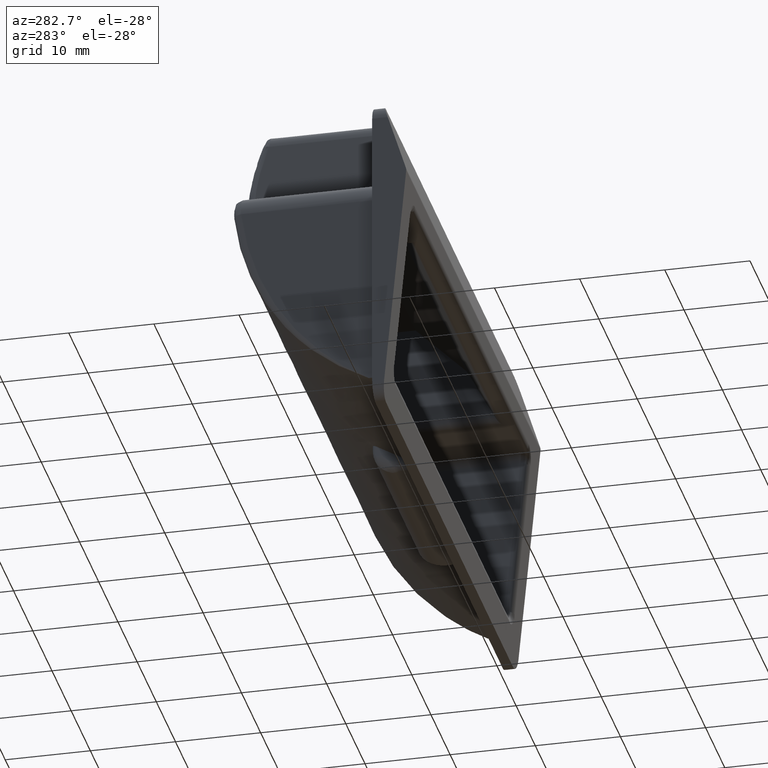
[diagram: clean part render]
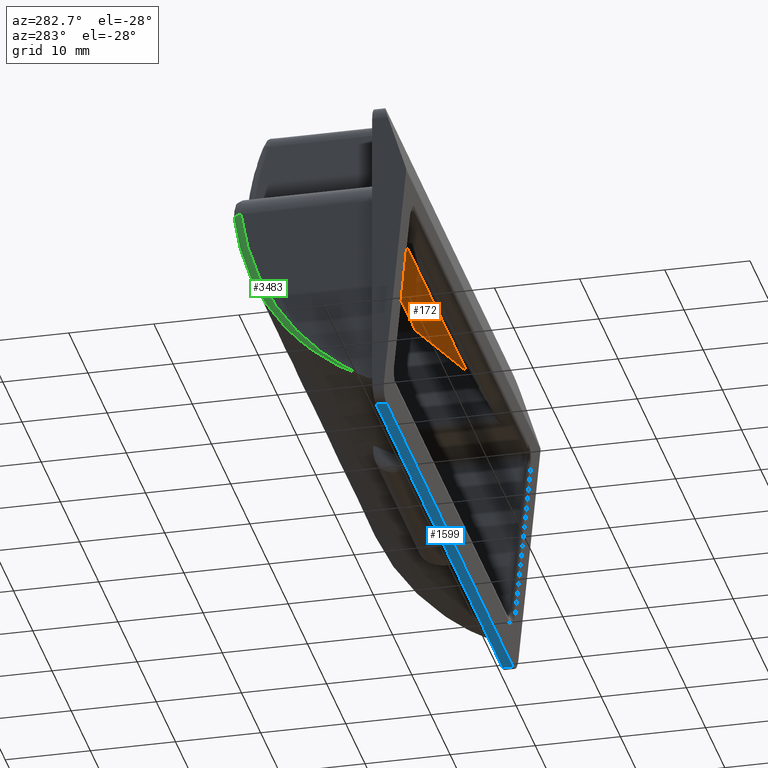
[diagram: same view with three faces highlighted in distinct colors, each labeled with its STEP entity id]
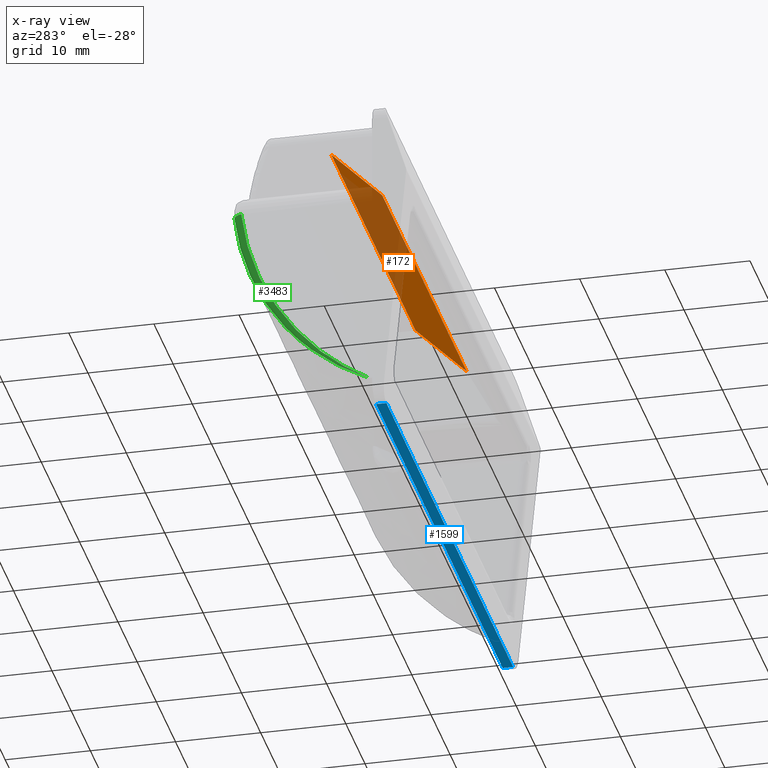
[diagram: x-ray of the same camera — body ghosted, the three highlighted faces saturated]
A machine part, auxiliary view with three faces highlighted in distinct colors.
The next image is the same camera in x-ray (body ghosted, the three faces saturated) — at least one of them is partly hidden behind the body in this view.
Their STEP definitions:

[orange] entity #172 — the highlighted face is a freeform B-spline surface patch.
#10=CARTESIAN_POINT('',(-22.0,1.749999999999800,13.250000000000000));
#11=VERTEX_POINT('',#10);
#41=CARTESIAN_POINT('',(-22.0,7.749999999999799,19.250000000000000));
#42=VERTEX_POINT('',#41);
#48=CARTESIAN_POINT('',(-22.0,7.749999999999799,19.250000000000000));
#49=CARTESIAN_POINT('',(-22.0,1.749999999999800,13.250000000000000));
#50=QUASI_UNIFORM_CURVE('',1,(#48,#49),.UNSPECIFIED.,.F.,.U.);
#51=EDGE_CURVE('',#42,#11,#50,.T.);
#85=CARTESIAN_POINT('',(22.0,1.749999999999800,13.250000000000000));
#86=VERTEX_POINT('',#85);
#92=CARTESIAN_POINT('',(22.0,7.749999999999799,19.250000000000000));
#93=VERTEX_POINT('',#92);
#94=CARTESIAN_POINT('',(22.0,7.749999999999799,19.250000000000000));
#95=CARTESIAN_POINT('',(22.0,1.749999999999800,13.250000000000000));
#96=QUASI_UNIFORM_CURVE('',1,(#94,#95),.UNSPECIFIED.,.F.,.U.);
#97=EDGE_CURVE('',#93,#86,#96,.T.);
#113=CARTESIAN_POINT('',(22.0,1.749999999999800,13.250000000000000));
#114=CARTESIAN_POINT('',(-22.0,1.749999999999800,13.250000000000000));
#115=QUASI_UNIFORM_CURVE('',1,(#113,#114),.UNSPECIFIED.,.F.,.U.);
#116=EDGE_CURVE('',#86,#11,#115,.T.);
#157=CARTESIAN_POINT('',(-24.197799914719461,1.450300011628964,12.950300011629160));
#158=CARTESIAN_POINT('',(-24.197799914719461,8.049700149303176,19.549700149303380));
#159=CARTESIAN_POINT('',(24.197801094891432,1.450300011628964,12.950300011629160));
#160=CARTESIAN_POINT('',(24.197801094891432,8.049700149303176,19.549700149303380));
#161=B_SPLINE_SURFACE_WITH_KNOTS('',1,1,((#157,#159),(#158,#160)),.UNSPECIFIED.,.F.,.F.,.U.,(2,2),(2,2),(0.0,9.332961178225743),(0.0,48.395601009610893),.UNSPECIFIED.);
#162=ORIENTED_EDGE('',*,*,#51,.F.);
#163=CARTESIAN_POINT('',(22.0,7.749999999999799,19.250000000000000));
#164=CARTESIAN_POINT('',(-22.0,7.749999999999799,19.250000000000000));
#165=QUASI_UNIFORM_CURVE('',1,(#163,#164),.UNSPECIFIED.,.F.,.U.);
#166=EDGE_CURVE('',#93,#42,#165,.T.);
#167=ORIENTED_EDGE('',*,*,#166,.F.);
#168=ORIENTED_EDGE('',*,*,#97,.T.);
#169=ORIENTED_EDGE('',*,*,#116,.T.);
#170=EDGE_LOOP('',(#162,#167,#168,#169));
#171=FACE_OUTER_BOUND('',#170,.T.);
#172=ADVANCED_FACE('',(#171),#161,.T.);

[blue] entity #1599 — the highlighted face is a freeform B-spline surface patch.
#1564=CARTESIAN_POINT('',(-36.296699872079202,-1.275422786382161,-19.750000000000000));
#1565=CARTESIAN_POINT('',(36.296701642337140,-1.275422786382161,-19.750000000000000));
#1566=CARTESIAN_POINT('',(-36.296699872079202,0.060676603681013,-19.750000000000000));
#1567=CARTESIAN_POINT('',(36.296701642337140,0.060676603681013,-19.750000000000000));
#1568=B_SPLINE_SURFACE_WITH_KNOTS('',1,1,((#1564,#1566),(#1565,#1567)),.UNSPECIFIED.,.F.,.F.,.U.,(2,2),(2,2),(0.0,72.593401514416342),(0.041708334948495,0.958291687403247),.UNSPECIFIED.);
#1569=CARTESIAN_POINT('',(33.0,0.0,-19.750000000000000));
#1570=VERTEX_POINT('',#1569);
#1571=CARTESIAN_POINT('',(-33.0,0.0,-19.750000000000000));
#1572=VERTEX_POINT('',#1571);
#1573=CARTESIAN_POINT('',(33.0,0.0,-19.750000000000000));
#1574=CARTESIAN_POINT('',(-33.0,0.0,-19.750000000000000));
#1575=QUASI_UNIFORM_CURVE('',1,(#1573,#1574),.UNSPECIFIED.,.F.,.U.);
#1576=EDGE_CURVE('',#1570,#1572,#1575,.T.);
#1577=ORIENTED_EDGE('',*,*,#1576,.F.);
#1578=CARTESIAN_POINT('',(33.0,-1.214746215283180,-19.750000000000000));
#1579=VERTEX_POINT('',#1578);
#1580=CARTESIAN_POINT('',(33.0,0.0,-19.750000000000000));
#1581=CARTESIAN_POINT('',(33.0,-1.214746215283180,-19.750000000000000));
#1582=QUASI_UNIFORM_CURVE('',1,(#1580,#1581),.UNSPECIFIED.,.F.,.U.);
#1583=EDGE_CURVE('',#1570,#1579,#1582,.T.);
#1584=ORIENTED_EDGE('',*,*,#1583,.T.);
#1585=CARTESIAN_POINT('',(-33.0,-1.214746215283180,-19.750000000000000));
#1586=VERTEX_POINT('',#1585);
#1587=CARTESIAN_POINT('',(33.0,-1.214746215283180,-19.750000000000000));
#1588=CARTESIAN_POINT('',(-33.0,-1.214746215283180,-19.750000000000000));
#1589=QUASI_UNIFORM_CURVE('',1,(#1587,#1588),.UNSPECIFIED.,.F.,.U.);
#1590=EDGE_CURVE('',#1579,#1586,#1589,.T.);
#1591=ORIENTED_EDGE('',*,*,#1590,.T.);
#1592=CARTESIAN_POINT('',(-33.0,-1.214746215283180,-19.750000000000000));
#1593=CARTESIAN_POINT('',(-33.0,0.0,-19.750000000000000));
#1594=QUASI_UNIFORM_CURVE('',1,(#1592,#1593),.UNSPECIFIED.,.F.,.U.);
#1595=EDGE_CURVE('',#1586,#1572,#1594,.T.);
#1596=ORIENTED_EDGE('',*,*,#1595,.T.);
#1597=EDGE_LOOP('',(#1577,#1584,#1591,#1596));
#1598=FACE_OUTER_BOUND('',#1597,.T.);
#1599=ADVANCED_FACE('',(#1598),#1568,.F.);

[green] entity #3483 — the highlighted face is a freeform B-spline surface patch.
#3248=CARTESIAN_POINT('',(-33.0,0.845232578665328,-16.250000000000000));
#3249=CARTESIAN_POINT('',(-32.999999999999936,0.845232578665327,-16.249999999999879));
#3250=CARTESIAN_POINT('',(-33.0,0.845232578665328,-16.250000000000000));
#3251=CARTESIAN_POINT('',(-32.937499881618351,1.933522280366724,-15.712333294949101));
#3252=CARTESIAN_POINT('',(-33.000000000029495,1.933522285790686,-15.712333292196409));
#3253=CARTESIAN_POINT('',(-33.0,1.905856945239279,-15.656288401383950));
#3254=CARTESIAN_POINT('',(-32.874999999946802,2.988001279042979,-15.106252171942851));
#3255=CARTESIAN_POINT('',(-32.999999999991552,2.988001279074649,-15.106252171961986));
#3256=CARTESIAN_POINT('',(-33.0,2.925545588159634,-14.997692320091961));
#3257=CARTESIAN_POINT('',(-32.751953125053213,5.012762166781489,-13.766789275586421));
#3258=CARTESIAN_POINT('',(-33.000000000008392,5.012762166749725,-13.766789275567259));
#3259=CARTESIAN_POINT('',(-33.0,4.869393981784070,-13.564221335260640));
#3260=CARTESIAN_POINT('',(-32.691406250032699,5.983033610392418,-13.033414066888801));
#3261=CARTESIAN_POINT('',(-33.000000000021039,5.983033610333686,-13.033414066859452));
#3262=CARTESIAN_POINT('',(-33.0,5.793533112746739,-12.789373324641360));
#3263=CARTESIAN_POINT('',(-32.574218749967187,7.824095123360008,-11.450912879302740));
#3264=CARTESIAN_POINT('',(-32.999999999978968,7.824095123418732,-11.450912879332170));
#3265=CARTESIAN_POINT('',(-33.0,7.534895445766829,-11.138039999117240));
#3266=CARTESIAN_POINT('',(-32.517578124928903,8.694877570254100,-10.601793452371981));
#3267=CARTESIAN_POINT('',(-33.000000000021068,8.694877570280587,-10.601793452420495));
#3268=CARTESIAN_POINT('',(-33.0,8.352121328734278,-10.261569079112800));
#3269=CARTESIAN_POINT('',(-32.410156250071012,10.323247535999240,-8.801174459379128));
#3270=CARTESIAN_POINT('',(-32.999999999978918,10.323247535972749,-8.801174459330683));
#3271=CARTESIAN_POINT('',(-33.0,9.870713142977849,-8.422186501565060));
#3272=CARTESIAN_POINT('',(-32.359374999972253,11.080828312979101,-7.849682348343431));
#3273=CARTESIAN_POINT('',(-33.000000000016769,11.080828312972379,-7.849682348351545));
#3274=CARTESIAN_POINT('',(-33.0,10.572084289503540,-7.459287656249400));
#3275=CARTESIAN_POINT('',(-32.265625000027647,12.470863925681840,-5.859300852586920));
#3276=CARTESIAN_POINT('',(-32.999999999983096,12.470863925688569,-5.859300852578762));
#3277=CARTESIAN_POINT('',(-33.0,11.852304900396099,-5.462413615348560));
#3278=CARTESIAN_POINT('',(-32.222656249960643,13.103313006305861,-4.820419708547941));
#3279=CARTESIAN_POINT('',(-33.000000000004121,13.103313006313961,-4.820419708554116));
#3280=CARTESIAN_POINT('',(-33.0,12.431161678580599,-4.428449217731620));
#3281=CARTESIAN_POINT('',(-32.146484375039350,14.233124637669199,-2.671619303469285));
#3282=CARTESIAN_POINT('',(-32.999999999995723,14.233124637661081,-2.671619303463059));
#3283=CARTESIAN_POINT('',(-33.0,13.461784403139720,-2.304620486128470));
#3284=CARTESIAN_POINT('',(-32.113281249961403,14.730482510704739,-1.561708939002835));
#3285=CARTESIAN_POINT('',(-32.999999999962078,14.730482510721357,-1.561708938994409));
#3286=CARTESIAN_POINT('',(-33.0,13.913559255802319,-1.214764601391720));
#3287=CARTESIAN_POINT('',(-32.058593750038597,15.582278417528300,0.711672075335969));
#3288=CARTESIAN_POINT('',(-33.000000000037879,15.582278417511679,0.711672075327583));
#3289=CARTESIAN_POINT('',(-33.0,14.687296222914821,1.006148619472976));
#3290=CARTESIAN_POINT('',(-32.037109374974449,15.936712924666400,1.875133312837100));
#3291=CARTESIAN_POINT('',(-32.999999999983068,15.936712924665374,1.875133312841297));
#3292=CARTESIAN_POINT('',(-33.0,15.009268279061200,2.137200081528370));
#3293=CARTESIAN_POINT('',(-32.007812500025452,16.497079424869099,4.237294799419046));
#3294=CARTESIAN_POINT('',(-33.000000000016790,16.497079424870194,4.237294799414842));
#3295=CARTESIAN_POINT('',(-33.0,15.522240054381751,4.426499564255235));
#3296=CARTESIAN_POINT('',(-32.000000000269452,16.703008850749299,5.435982975327950));
#3297=CARTESIAN_POINT('',(-32.999999999987374,16.703008850547306,5.435982975352800));
#3298=CARTESIAN_POINT('',(-33.0,15.713251804900249,5.584759628465320));
#3299=CARTESIAN_POINT('',(-32.0,16.833065450369752,6.642857142857049));
#3300=CARTESIAN_POINT('',(-32.999999999999950,16.833065450369801,6.642857142857043));
#3301=CARTESIAN_POINT('',(-33.0,15.838821814150100,6.749999999999909));
#3309=(BOUNDED_SURFACE()B_SPLINE_SURFACE(2,3,((#3248,#3251,#3254,#3257,#3260,#3263,#3266,#3269,#3272,#3275,#3278,#3281,#3284,#3287,#3290,#3293,#3296,#3299),(#3249,#3252,#3255,#3258,#3261,#3264,#3267,#3270,#3273,#3276,#3279,#3282,#3285,#3288,#3291,#3294,#3297,#3300),(#3250,#3253,#3256,#3259,#3262,#3265,#3268,#3271,#3274,#3277,#3280,#3283,#3286,#3289,#3292,#3295,#3298,#3301)),.UNSPECIFIED.,.F.,.F.,.U.)B_SPLINE_SURFACE_WITH_KNOTS((3,3),(4,2,2,2,2,2,2,2,4),(0.0,1.0),(0.458874205014118,0.584445855723981,0.710017506433844,0.835589157143708,0.961160807853571,1.086732458563434,1.212304109273298,1.337875759983162,1.463447410693024),.UNSPECIFIED.)GEOMETRIC_REPRESENTATION_ITEM()RATIONAL_B_SPLINE_SURFACE(((1.0,1.0,1.0,1.0,1.0,1.0,1.0,1.0,1.0,1.0,1.0,1.0,1.0,1.0,1.0,1.0,1.0,1.0),(0.707106781186548,0.707106781186548,0.707106781186548,0.707106781186548,0.707106781186548,0.707106781186548,0.707106781186548,0.707106781186548,0.707106781186548,0.707106781186548,0.707106781186548,0.707106781186548,0.707106781186548,0.707106781186548,0.707106781186548,0.707106781186548,0.707106781186548,0.707106781186548),(1.0,1.0,1.0,1.0,1.0,1.0,1.0,1.0,1.0,1.0,1.0,1.0,1.0,1.0,1.0,1.0,1.0,1.0)))REPRESENTATION_ITEM('')SURFACE());
#3310=CARTESIAN_POINT('',(-33.0,0.845232578665328,-16.250000000000000));
#3311=VERTEX_POINT('',#3310);
#3312=CARTESIAN_POINT('',(-32.0,16.833065450369752,6.642857142857049));
#3313=VERTEX_POINT('',#3312);
#3314=CARTESIAN_POINT('',(-33.0,0.845232578665328,-16.250000000000000));
#3315=CARTESIAN_POINT('',(-32.998742217443883,0.867126701445313,-16.239163399060271));
#3316=CARTESIAN_POINT('',(-32.996236217188702,0.910748452288344,-16.217572604538660));
#3317=CARTESIAN_POINT('',(-32.992492130969140,0.975828030332117,-16.185101901732999));
#3318=CARTESIAN_POINT('',(-32.988777156025158,1.040334033114973,-16.152730447242661));
#3319=CARTESIAN_POINT('',(-32.985091332134203,1.104260576042300,-16.120447275748159));
#3320=CARTESIAN_POINT('',(-32.981434648760931,1.167611077516724,-16.088260212005100));
#3321=CARTESIAN_POINT('',(-32.977807108693192,1.230386497123503,-16.056172057377530));
#3322=CARTESIAN_POINT('',(-32.974208711192723,1.292588450320877,-16.024186897092211));
#3323=CARTESIAN_POINT('',(-32.970639456454300,1.354218383088242,-15.992308430013139));
#3324=CARTESIAN_POINT('',(-32.967099344425201,1.415277790005642,-15.960540411063210));
#3325=CARTESIAN_POINT('',(-32.963588375118057,1.475768156035690,-15.928886534214900));
#3326=CARTESIAN_POINT('',(-32.960106548529247,1.535690971467403,-15.897350463606600));
#3327=CARTESIAN_POINT('',(-32.956653864658058,1.595047727494916,-15.865935825443991));
#3328=CARTESIAN_POINT('',(-32.953230323504123,1.653839916927627,-15.834646210283751));
#3329=CARTESIAN_POINT('',(-32.949835925065763,1.712069033546507,-15.803485172570580));
#3330=CARTESIAN_POINT('',(-32.946470669342972,1.769736571823689,-15.772456230902030));
#3331=CARTESIAN_POINT('',(-32.943134556334570,1.826844026550382,-15.741562868102161));
#3332=CARTESIAN_POINT('',(-32.939827586039229,1.883392892493840,-15.710808531346659));
#3333=CARTESIAN_POINT('',(-32.936549758456252,1.939384664051346,-15.680196632275420));
#3334=CARTESIAN_POINT('',(-32.933301073584531,1.994820834909504,-15.649730547109270));
#3335=CARTESIAN_POINT('',(-32.930081531422850,2.049702897706848,-15.619413616766639));
#3336=CARTESIAN_POINT('',(-32.926891131970883,2.104032343700220,-15.589249146980890));
#3337=CARTESIAN_POINT('',(-32.923729875226513,2.157810662434579,-15.559240408418351));
#3338=CARTESIAN_POINT('',(-32.920597761188979,2.211039341416758,-15.529390636796810));
#3339=CARTESIAN_POINT('',(-32.917494789856953,2.263719865792496,-15.499703033004490));
#3340=CARTESIAN_POINT('',(-32.914420961229190,2.315853718027307,-15.470180763219560));
#3341=CARTESIAN_POINT('',(-32.911376275304278,2.367442377590815,-15.440826959030041));
#3342=CARTESIAN_POINT('',(-32.908360732081228,2.418487320644718,-15.411644717553870));
#3343=CARTESIAN_POINT('',(-32.905374331558278,2.468990019734245,-15.382637101559689));
#3344=CARTESIAN_POINT('',(-32.902417073733773,2.518951943483265,-15.353807139587531));
#3345=CARTESIAN_POINT('',(-32.899488958606383,2.568374556292814,-15.325157826069850));
#3346=CARTESIAN_POINT('',(-32.896589986174511,2.617259318043239,-15.296692121452940));
#3347=CARTESIAN_POINT('',(-32.893720156436338,2.665607683799767,-15.268412952318210));
#3348=CARTESIAN_POINT('',(-32.890879469390647,2.713421103521637,-15.240323211503730));
#3349=CARTESIAN_POINT('',(-32.888067925035003,2.760701021774630,-15.212425758225891));
#3350=CARTESIAN_POINT('',(-32.885285523367628,2.807448877447151,-15.184723418200971));
#3351=CARTESIAN_POINT('',(-32.882532264387372,2.853666103469753,-15.157218983766731));
#3352=CARTESIAN_POINT('',(-32.879808148090760,2.899354126537910,-15.129915214004070));
#3353=CARTESIAN_POINT('',(-32.877113174476747,2.944514366838583,-15.102814834858430));
#3354=CARTESIAN_POINT('',(-32.874447343542890,2.989148237779813,-15.075920539261160));
#3355=CARTESIAN_POINT('',(-32.871810655286552,3.033257145723917,-15.049234987250751));
#3356=CARTESIAN_POINT('',(-32.869203109705502,3.076842489724051,-15.022760806093860));
#3357=CARTESIAN_POINT('',(-32.866624706797573,3.119905661264088,-14.996500590405960));
#3358=CARTESIAN_POINT('',(-32.864075446559703,3.162448044001811,-14.970456902271980));
#3359=CARTESIAN_POINT('',(-32.861555328989212,3.204471013515576,-14.944632271366370));
#3360=CARTESIAN_POINT('',(-32.859064354083237,3.245975937054162,-14.919029195073060));
#3361=CARTESIAN_POINT('',(-32.856602521838653,3.286964173289997,-14.893650138604841));
#3362=CARTESIAN_POINT('',(-32.854169832252651,3.327437072075680,-14.868497535122479));
#3363=CARTESIAN_POINT('',(-32.851766285321283,3.367395974203687,-14.843573785853360));
#3364=CARTESIAN_POINT('',(-32.849391881041939,3.406842211169558,-14.818881260209540));
#3365=CARTESIAN_POINT('',(-32.847046619410207,3.445777104938024,-14.794422295905470));
#3366=CARTESIAN_POINT('',(-32.844730500422358,3.484201967712664,-14.770199199075099));
#3367=CARTESIAN_POINT('',(-32.842443524074937,3.522118101708621,-14.746214244388289));
#3368=CARTESIAN_POINT('',(-32.840185690363263,3.559526798928524,-14.722469675166881));
#3369=CARTESIAN_POINT('',(-32.837956999282937,3.596429340941656,-14.698967703499850));
#3370=CARTESIAN_POINT('',(-32.835757450829590,3.632826998666376,-14.675710510357970));
#3371=CARTESIAN_POINT('',(-32.833587044997849,3.668721032155265,-14.652700245707861));
#3372=CARTESIAN_POINT('',(-32.831445781782662,3.704112690384787,-14.629939028624610));
#3373=CARTESIAN_POINT('',(-32.829333661180627,3.739003211043793,-14.607428947406410));
#3374=CARTESIAN_POINT('',(-32.827250683175869,3.773393820339802,-14.585172059678090));
#3375=CARTESIAN_POINT('',(-32.825196847800058,3.807285732755831,-14.563170392531710));
#3376=CARTESIAN_POINT('',(-32.823172154910537,3.840680151001867,-14.541425942527860));
#3377=CARTESIAN_POINT('',(-32.821176604997447,3.873578265269375,-14.519940676202340));
#3378=CARTESIAN_POINT('',(-32.819210196236497,3.905981255046865,-14.498716528721490));
#3379=CARTESIAN_POINT('',(-32.817272935259822,3.937890281594637,-14.477755409297020));
#3380=CARTESIAN_POINT('',(-32.815364797814020,3.969306514544178,-14.457059181911390));
#3381=CARTESIAN_POINT('',(-32.797437928500742,4.264358042217940,-14.262141385491651));
#3382=CARTESIAN_POINT('',(-32.764494631294127,4.802854671180455,-13.892589334770040));
#3383=CARTESIAN_POINT('',(-32.717789127174669,5.556461266454789,-13.337811747496639));
#3384=CARTESIAN_POINT('',(-32.674132261556998,6.252518535651880,-12.790898561815920));
#3385=CARTESIAN_POINT('',(-32.630739264570757,6.937209945800698,-12.219289165528201));
#3386=CARTESIAN_POINT('',(-32.587431414997468,7.614048734590952,-11.617830111388381));
#3387=CARTESIAN_POINT('',(-32.544020643251841,8.285690721533403,-10.980824750912729));
#3388=CARTESIAN_POINT('',(-32.502927881247267,8.915658254645313,-10.344613000448650));
#3389=CARTESIAN_POINT('',(-32.462535113273049,9.529958456409544,-9.685365677293488));
#3390=CARTESIAN_POINT('',(-32.422859716178010,10.129144795713501,-9.000749147548904));
#3391=CARTESIAN_POINT('',(-32.383913228807970,10.713344261119580,-8.288301567928276));
#3392=CARTESIAN_POINT('',(-32.347145380028742,11.261686183404089,-7.575048038478923));
#3393=CARTESIAN_POINT('',(-32.311513644853349,11.790723801261510,-6.841433951194937));
#3394=CARTESIAN_POINT('',(-32.277100519654553,12.300170955340100,-6.086298259416755));
#3395=CARTESIAN_POINT('',(-32.243984246192483,12.789486622388550,-5.308475326040161));
#3396=CARTESIAN_POINT('',(-32.213104936771018,13.245626076183020,-4.530215542812610));
#3397=CARTESIAN_POINT('',(-32.183785736849622,13.679523662321211,-3.734696700692993));
#3398=CARTESIAN_POINT('',(-32.156138780508492,14.090613482823910,-2.921410582577508));
#3399=CARTESIAN_POINT('',(-32.130272548889252,14.478167695434159,-2.089888268086901));
#3400=CARTESIAN_POINT('',(-32.106791870240272,14.834000233904581,-1.259289787793875));
#3401=CARTESIAN_POINT('',(-32.091308246291007,15.072497887331140,-0.651309924245761));
#3402=CARTESIAN_POINT('',(-32.082231805245193,15.214185538847589,-0.269842291615069));
#3403=CARTESIAN_POINT('',(-32.078617207070472,15.270881327485149,-0.114488332092413));
#3404=CARTESIAN_POINT('',(-32.075083802688582,15.326580470754260,0.040877382302674));
#3405=CARTESIAN_POINT('',(-32.071631631558539,15.381286550202150,0.196248216479604));
#3406=CARTESIAN_POINT('',(-32.068260683137773,15.435003036412599,0.351617226933227));
#3407=CARTESIAN_POINT('',(-32.064970960239933,15.487733478884120,0.506977620365937));
#3408=CARTESIAN_POINT('',(-32.061762462112291,15.539481454528801,0.662322631242681));
#3409=CARTESIAN_POINT('',(-32.058635188952778,15.590250580658180,0.817645554569368));
#3410=CARTESIAN_POINT('',(-32.055589140707447,15.640044510745540,0.972939737197046));
#3411=CARTESIAN_POINT('',(-32.052624317388641,15.688866934792530,1.128198580198603));
#3412=CARTESIAN_POINT('',(-32.049740718990712,15.736721578469639,1.283415538280639));
#3413=CARTESIAN_POINT('',(-32.046938345512942,15.783612202587570,1.438584119980594));
#3414=CARTESIAN_POINT('',(-32.044217196954172,15.829542602484141,1.593697887647263));
#3415=CARTESIAN_POINT('',(-32.041577273312093,15.874516607437149,1.748750457472495));
#3416=CARTESIAN_POINT('',(-32.039018574585313,15.918538080074240,1.903735499502610));
#3417=CARTESIAN_POINT('',(-32.036541100772517,15.961610915787240,2.058646737648711));
#3418=CARTESIAN_POINT('',(-32.034144851871140,16.003739042149139,2.213477949690729));
#3419=CARTESIAN_POINT('',(-32.031829827880863,16.044926418334150,2.368222967276848));
#3420=CARTESIAN_POINT('',(-32.029596028798821,16.085177034540880,2.522875675917707));
#3421=CARTESIAN_POINT('',(-32.027443454623914,16.124494911418530,2.677430014975830));
#3422=CARTESIAN_POINT('',(-32.025372105353988,16.162884099496239,2.831879977650065));
#3423=CARTESIAN_POINT('',(-32.023381980987793,16.200348678615580,2.986219610955306));
#3424=CARTESIAN_POINT('',(-32.021473081523517,16.236892757366189,3.140443015697332));
#3425=CARTESIAN_POINT('',(-32.019645406959377,16.272520472524612,3.294544346443034));
#3426=CARTESIAN_POINT('',(-32.017898957293127,16.307235988496359,3.448517811485961));
#3427=CARTESIAN_POINT('',(-32.016233732523673,16.341043496761159,3.602357672807242));
#3428=CARTESIAN_POINT('',(-32.014649732649083,16.373947215321579,3.756058246031980));
#3429=CARTESIAN_POINT('',(-32.013146957667523,16.405951388154719,3.909613900381159));
#3430=CARTESIAN_POINT('',(-32.011725407576868,16.437060284667520,4.063019058619137));
#3431=CARTESIAN_POINT('',(-32.010385082375862,16.467278199154880,4.216268196996757));
#3432=CARTESIAN_POINT('',(-32.009125982062272,16.496609450262540,4.369355845189963));
#3433=CARTESIAN_POINT('',(-32.007948106634579,16.525058380447959,4.522276586234862));
#3434=CARTESIAN_POINT('',(-32.006851456090097,16.552629355465101,4.675025056456167));
#3435=CARTESIAN_POINT('',(-32.005836030430586,16.579326763775569,4.827595945399921));
#3436=CARTESIAN_POINT('',(-32.004901829639387,16.605155016250372,4.979983995731131));
#3437=CARTESIAN_POINT('',(-32.004048853769831,16.630118544805949,5.132184003242537));
#3438=CARTESIAN_POINT('',(-32.003277102616558,16.654221805021919,5.284190816430683));
#3439=CARTESIAN_POINT('',(-32.002586576932721,16.677469263961971,5.435999337662997));
#3440=CARTESIAN_POINT('',(-32.001977273907933,16.699865443057220,5.587604518407678));
#3441=CARTESIAN_POINT('',(-32.001449203987868,16.721414756168610,5.739001376532039));
#3442=CARTESIAN_POINT('',(-32.001002328304111,16.742122109614861,5.890184931486364));
#3443=CARTESIAN_POINT('',(-32.000636791440250,16.761990667665302,6.041150444940493));
#3444=CARTESIAN_POINT('',(-32.000352055535359,16.781030162600871,6.191892525109614));
#3445=CARTESIAN_POINT('',(-32.000150121414237,16.799225978952890,6.342408458143981));
#3446=CARTESIAN_POINT('',(-32.000023546072633,16.816654157029149,6.492685814908651));
#3447=CARTESIAN_POINT('',(-32.000007843014622,16.827598975501409,6.592836235111538));
#3448=CARTESIAN_POINT('',(-31.999999999999918,16.833065450369752,6.642857142857027));
#3449=B_SPLINE_CURVE_WITH_KNOTS('',3,(#3314,#3315,#3316,#3317,#3318,#3319,#3320,#3321,#3322,#3323,#3324,#3325,#3326,#3327,#3328,#3329,#3330,#3331,#3332,#3333,#3334,#3335,#3336,#3337,#3338,#3339,#3340,#3341,#3342,#3343,#3344,#3345,#3346,#3347,#3348,#3349,#3350,#3351,#3352,#3353,#3354,#3355,#3356,#3357,#3358,#3359,#3360,#3361,#3362,#3363,#3364,#3365,#3366,#3367,#3368,#3369,#3370,#3371,#3372,#3373,#3374,#3375,#3376,#3377,#3378,#3379,#3380,#3381,#3382,#3383,#3384,#3385,#3386,#3387,#3388,#3389,#3390,#3391,#3392,#3393,#3394,#3395,#3396,#3397,#3398,#3399,#3400,#3401,#3402,#3403,#3404,#3405,#3406,#3407,#3408,#3409,#3410,#3411,#3412,#3413,#3414,#3415,#3416,#3417,#3418,#3419,#3420,#3421,#3422,#3423,#3424,#3425,#3426,#3427,#3428,#3429,#3430,#3431,#3432,#3433,#3434,#3435,#3436,#3437,#3438,#3439,#3440,#3441,#3442,#3443,#3444,#3445,#3446,#3447,#3448),.UNSPECIFIED.,.F.,.U.,(4,1,1,1,1,1,1,1,1,1,1,1,1,1,1,1,1,1,1,1,1,1,1,1,1,1,1,1,1,1,1,1,1,1,1,1,1,1,1,1,1,1,1,1,1,1,1,1,1,1,1,1,1,1,1,1,1,1,1,1,1,1,1,1,1,1,1,1,1,1,1,1,1,1,1,1,1,1,1,1,1,1,1,1,1,1,1,1,1,1,1,1,1,1,1,1,1,1,1,1,1,1,1,1,1,1,1,1,1,1,1,1,1,1,1,1,1,1,1,1,1,1,1,1,1,1,1,1,1,1,1,1,4),(0.0,0.002517269317993,0.005015395962552,0.007494379933545,0.009954221230841,0.012394919854315,0.014816475803847,0.017218889079320,0.019602159680621,0.021966287607641,0.024311272860278,0.026637115438431,0.028943815342007,0.031231372570916,0.033499787125074,0.035749059004400,0.037979188208819,0.040190174738262,0.042382018592666,0.044554719771971,0.046708278276124,0.048842694105077,0.050957967258789,0.053054097737224,0.055131085540354,0.057188930668154,0.059227633120608,0.061247192897707,0.063247609999447,0.065228884425832,0.067191016176874,0.069134005252592,0.071057851653011,0.072962555378166,0.074848116428100,0.076714534802864,0.078561810502517,0.080389943527130,0.082198933876779,0.083988781551553,0.085759486551550,0.087511048876879,0.089243468527657,0.090956745504016,0.092650879806097,0.094325871434055,0.095981720388055,0.097618426668277,0.099235990274914,0.100834411208172,0.102413689468274,0.103973825055457,0.105514817969974,0.107036668212094,0.108539375782105,0.110022940680313,0.111487362907042,0.112932642462637,0.114358779347465,0.115765773561913,0.117153625106393,0.118522333981340,0.119871900187217,0.121202323724511,0.122513604593741,0.123805742795453,0.125078738330228,0.158950640776978,0.191085197432138,0.221482394148129,0.250142219949625,0.282967768818058,0.314750319709118,0.345489893679561,0.375186515201776,0.407559251113045,0.439186440244330,0.470068137546589,0.500204402478461,0.532321472708108,0.563858294767109,0.594814965112738,0.625191585929326,0.657142753293196,0.688619053788369,0.719620634669149,0.750147650168805,0.755833071877582,0.761507193589174,0.767170016440358,0.772821541574726,0.778461770142746,0.784090703301813,0.789708342216303,0.795314688057635,0.800909742004319,0.806493505242017,0.812065978963601,0.817627164369207,0.823177062666297,0.828715675069717,0.834243002801754,0.839759047092199,0.845263809178407,0.850757290305360,0.856239491725722,0.861710414699911,0.867170060496157,0.872618430390564,0.878055525667180,0.883481347618057,0.888895897543319,0.894299176751229,0.899691186558255,0.905071928289137,0.910441403276959,0.915799612863213,0.921146558397873,0.926482241239463,0.931806662755131,0.937119824320720,0.942421727320837,0.947712373148932,0.952991763207372,0.958259898907511,0.963516781669769,0.968762412923713,0.973996794108125,0.979219926671088,0.984431812070062,0.989632451771966,0.994821847253253,1.0),.UNSPECIFIED.);
#3450=EDGE_CURVE('',#3311,#3313,#3449,.T.);
#3451=ORIENTED_EDGE('',*,*,#3450,.F.);
#3452=CARTESIAN_POINT('',(-33.0,15.838821814150100,6.749999999999920));
#3453=VERTEX_POINT('',#3452);
#3454=CARTESIAN_POINT('',(-33.0,15.838821814150100,6.749999999999920));
#3455=CARTESIAN_POINT('',(-33.000000000000171,15.651965026686280,5.014366128057847));
#3456=CARTESIAN_POINT('',(-32.999999999999787,15.078608112444440,2.049891973594816));
#3457=CARTESIAN_POINT('',(-33.000000000000213,13.696337900158190,-1.882270700051865));
#3458=CARTESIAN_POINT('',(-32.999999999999659,12.085641585046750,-5.153176614826569));
#3459=CARTESIAN_POINT('',(-33.000000000000043,10.280309000799701,-7.929885201335776));
#3460=CARTESIAN_POINT('',(-33.000000000000277,8.115167168444007,-10.578453654205010));
#3461=CARTESIAN_POINT('',(-32.999999999999382,5.826275567339536,-12.816062490412010));
#3462=CARTESIAN_POINT('',(-33.000000000001137,3.295423653304509,-14.771935508507660));
#3463=CARTESIAN_POINT('',(-32.999999999998018,1.655517098301921,-15.796474666455509));
#3464=CARTESIAN_POINT('',(-33.0,0.845232578665328,-16.250000000000000));
#3465=B_SPLINE_CURVE_WITH_KNOTS('',3,(#3454,#3455,#3456,#3457,#3458,#3459,#3460,#3461,#3462,#3463,#3464),.UNSPECIFIED.,.F.,.U.,(4,1,1,1,1,1,1,1,4),(-0.000001892205994,5.237141921207634,9.025709010580020,12.479994963077949,16.157134238530080,18.942851009790520,22.731419316228550,25.739992121698009,28.525698504136539),.UNSPECIFIED.);
#3466=EDGE_CURVE('',#3453,#3311,#3465,.T.);
#3467=ORIENTED_EDGE('',*,*,#3466,.F.);
#3468=CARTESIAN_POINT('',(-33.0,15.838821814150100,6.749999999999920));
#3469=CARTESIAN_POINT('',(-33.000000000000163,16.833065450370466,6.642857142863246));
#3470=CARTESIAN_POINT('',(-32.0,16.833065450370199,6.642857142861241));
#3478=(BOUNDED_CURVE()B_SPLINE_CURVE(2,(#3468,#3469,#3470),.UNSPECIFIED.,.F.,.U.)CURVE()GEOMETRIC_REPRESENTATION_ITEM()QUASI_UNIFORM_CURVE()RATIONAL_B_SPLINE_CURVE((1.0,0.707106781186443,1.0))REPRESENTATION_ITEM(''));
#3479=EDGE_CURVE('',#3453,#3313,#3478,.T.);
#3480=ORIENTED_EDGE('',*,*,#3479,.T.);
#3481=EDGE_LOOP('',(#3451,#3467,#3480));
#3482=FACE_OUTER_BOUND('',#3481,.T.);
#3483=ADVANCED_FACE('',(#3482),#3309,.T.);